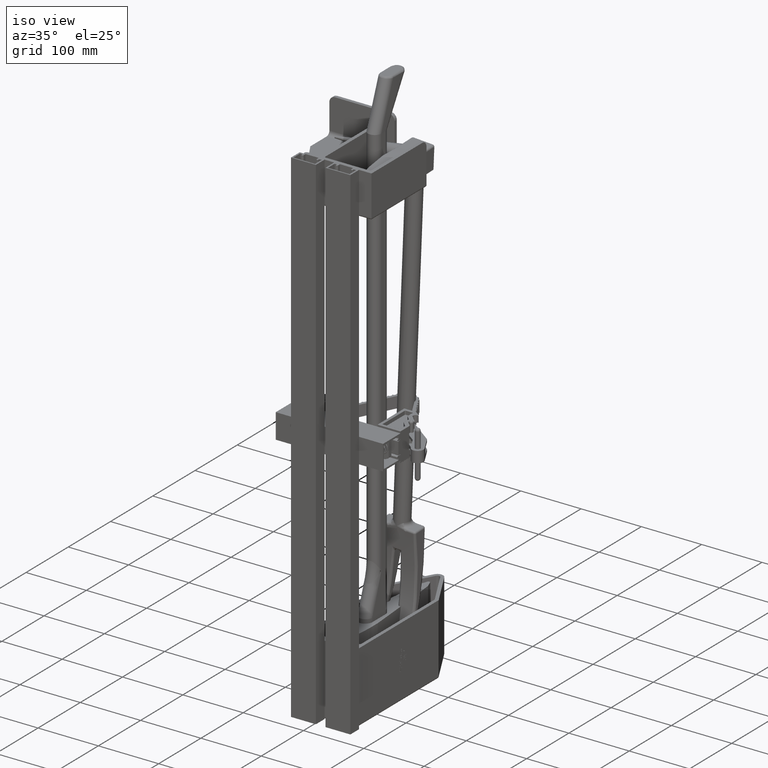
[diagram: clean part render]
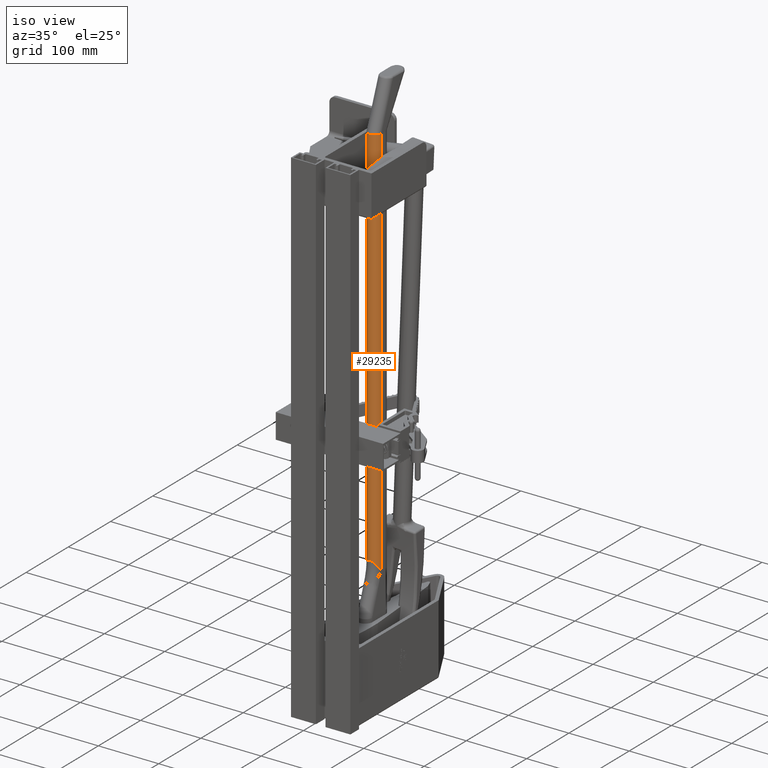
[diagram: same view with one face highlighted and labeled with its STEP entity id]
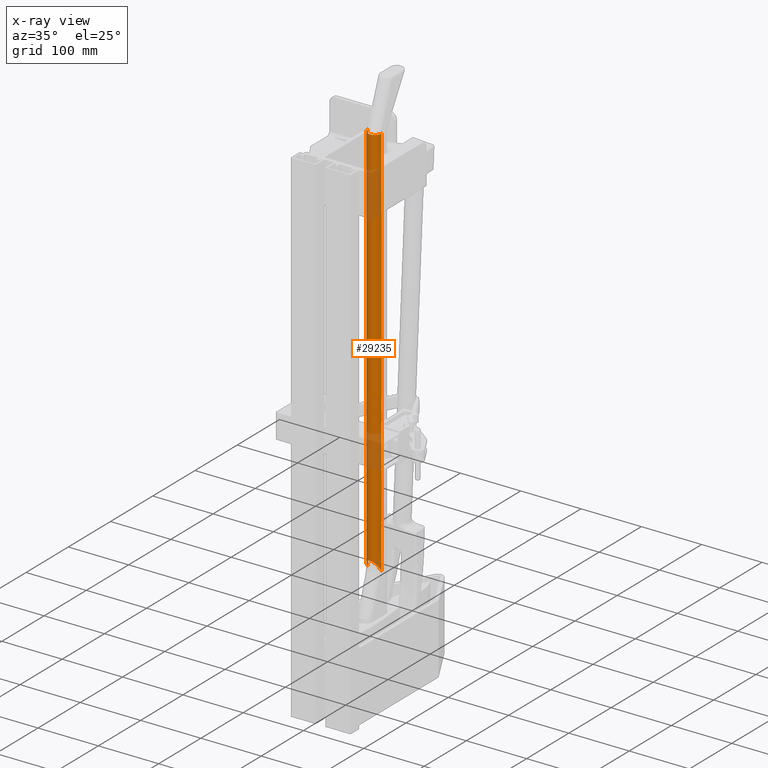
[diagram: x-ray of the same camera — body ghosted, the highlighted face saturated]
A machine part, iso view. The second image highlights one B-rep face of the part: STEP entity #29235.
The next image is the same camera in x-ray: the body ghosted, the highlighted face saturated — about 19% of this face is hidden behind the body in this view.
In plain terms, the highlighted cylindrical surface (edge-blend (fillet) strip) has radius 11.1125 mm, axis along (0, -0, -1).
Its self-contained STEP definition (entity closure, byte-faithful):
#21373 = B_SPLINE_CURVE_WITH_KNOTS ( 'NONE', 3,
 ( #52588, #52625, #52626, #52627, #52628, #52629, #52630, #52631, #52632, #52633, #52634, #52635, #52636, #52637, #52638, #52639, #52640, #52641, #52642, #52643, #52644, #52645, #52646, #52647, #52648, #52649, #52650, #52651, #52652, #52653, #52654, #52655, #52656, #52657, #52658, #52659, #52660, #52661, #52662, #52663, #52664, #52665, #52666, #52667, #52668, #52669, #52670, #52671, #52672, #52673, #52674, #52675 ),
 .UNSPECIFIED., .F., .F.,
 ( 4, 2, 2, 2, 2, 2, 2, 2, 2, 2, 2, 2, 2, 2, 2, 2, 2, 2, 2, 2, 2, 2, 2, 2, 2, 4 ),
 ( -2.097873725730390100E-005, 0.003104148637067080700, 0.006229276011391464800, 0.009354403385715850600, 0.01247953076004023500, 0.01560465813436461900, 0.01716722182152680500, 0.01872978550868898900, 0.02029234919585117700, 0.02185491288301336800, 0.02341747657017555200, 0.02419875841375664800, 0.02498004025733774000, 0.02654260394449990300, 0.02810516763166207000, 0.02966773131882423400, 0.03123029500598639400, 0.03279285869314856700, 0.03435542238031073100, 0.03591798606747289400, 0.03748054975463505800, 0.04060567712895932900, 0.04373080450328360700, 0.04685593187760787900, 0.04841849556476998700, 0.04998105925193208800 ),
 .UNSPECIFIED. ) ;
#21376 = B_SPLINE_CURVE_WITH_KNOTS ( 'NONE', 3,
 ( #52572, #52678, #52679, #52680, #52681, #52682, #52683, #52684, #52685, #52686, #52687, #52688, #52689, #52690, #52691 ),
 .UNSPECIFIED., .F., .F.,
 ( 4, 1, 1, 1, 1, 1, 1, 1, 1, 1, 1, 1, 4 ),
 ( 0.0000000000000000000, 0.06249999989689571100, 0.1249999999037693000, 0.2499999999175166200, 0.3749999999312639300, 0.4374999999381372600, 0.4999999999450111000, 0.5624999999518849300, 0.6249999999587584300, 0.7499999999725056600, 0.8749999999862526600, 0.9374999999931265000, 1.000000000000000000 ),
 .UNSPECIFIED. ) ;
#23051 = ORIENTED_EDGE ( 'NONE', *, *, #28855, .T. ) ;
#23052 = ORIENTED_EDGE ( 'NONE', *, *, #28854, .T. ) ;
#23053 = ORIENTED_EDGE ( 'NONE', *, *, #28832, .F. ) ;
#23054 = ORIENTED_EDGE ( 'NONE', *, *, #28856, .F. ) ;
#25228 = VERTEX_POINT ( 'NONE', #42778 ) ;
#25229 = VERTEX_POINT ( 'NONE', #42780 ) ;
#25236 = VERTEX_POINT ( 'NONE', #42794 ) ;
#25237 = VERTEX_POINT ( 'NONE', #42796 ) ;
#28832 = EDGE_CURVE ( 'NONE', #25228, #25229, #50689, .T. ) ;
#28854 = EDGE_CURVE ( 'NONE', #25236, #25229, #21373, .T. ) ;
#28855 = EDGE_CURVE ( 'NONE', #25237, #25236, #50708, .T. ) ;
#28856 = EDGE_CURVE ( 'NONE', #25237, #25228, #21376, .T. ) ;
#29235 = ADVANCED_FACE ( 'NONE', ( #51269 ), #51270, .T. ) ;
#33684 = EDGE_LOOP ( 'NONE', ( #23051, #23052, #23053, #23054 ) ) ;
#37541 = AXIS2_PLACEMENT_3D ( 'NONE', #63648, #63559, #63561 ) ;
#42778 = CARTESIAN_POINT ( 'NONE',  ( -2.887444690265486900, 1.241874613805310500, 31.99999999999999600 ) ) ;
#42780 = CARTESIAN_POINT ( 'NONE',  ( -2.887444690265486900, 1.241874613805310500, 6.199999999999994000 ) ) ;
#42794 = CARTESIAN_POINT ( 'NONE',  ( -2.012444690265487300, 1.241874613805310500, 6.199999999999994000 ) ) ;
#42796 = CARTESIAN_POINT ( 'NONE',  ( -2.012444690265487300, 1.241874613805310500, 31.99999999999999600 ) ) ;
#50688 = VECTOR ( 'NONE', #52449, 39.37007874015748100 ) ;
#50689 = LINE ( 'NONE', #52448, #50688 ) ;
#50708 = LINE ( 'NONE', #52676, #50719 ) ;
#50719 = VECTOR ( 'NONE', #52677, 39.37007874015748100 ) ;
#51269 = FACE_OUTER_BOUND ( 'NONE', #33684, .T. ) ;
#51270 = CYLINDRICAL_SURFACE ( 'NONE', #37541, 0.4374999999999998900 ) ;
#52448 = CARTESIAN_POINT ( 'NONE',  ( -2.887444690265486900, 1.241874613805310500, 31.99999999999999600 ) ) ;
#52449 = DIRECTION ( 'NONE',  ( -0.0000000000000000000, -0.0000000000000000000, -1.000000000000000000 ) ) ;
#52572 = CARTESIAN_POINT ( 'NONE',  ( -2.012444690265487300, 1.241874613805310500, 31.99999999999999600 ) ) ;
#52588 = CARTESIAN_POINT ( 'NONE',  ( -2.012444690265487300, 1.241874613805310500, 6.199999999999994000 ) ) ;
#52625 = CARTESIAN_POINT ( 'NONE',  ( -2.012444690265489600, 1.264623910365793900, 6.234124298257017700 ) ) ;
#52626 = CARTESIAN_POINT ( 'NONE',  ( -2.014211186721981800, 1.287372194627643700, 6.268239099271345300 ) ) ;
#52627 = CARTESIAN_POINT ( 'NONE',  ( -2.021369800931315000, 1.332744191790390600, 6.336193280402305600 ) ) ;
#52628 = CARTESIAN_POINT ( 'NONE',  ( -2.026766272818894000, 1.355361573277510400, 6.370044060745901700 ) ) ;
#52629 = CARTESIAN_POINT ( 'NONE',  ( -2.041369544810120100, 1.400069473010578700, 6.436870873962177200 ) ) ;
#52630 = CARTESIAN_POINT ( 'NONE',  ( -2.050580817321777000, 1.422201809365567500, 6.469893446826105800 ) ) ;
#52631 = CARTESIAN_POINT ( 'NONE',  ( -2.073271612120526400, 1.465764749077117100, 6.535202902990137700 ) ) ;
#52632 = CARTESIAN_POINT ( 'NONE',  ( -2.086810516563836000, 1.487282081844739200, 6.567617804967897900 ) ) ;
#52633 = CARTESIAN_POINT ( 'NONE',  ( -2.118657738108113100, 1.528824450553449200, 6.630253706017304800 ) ) ;
#52634 = CARTESIAN_POINT ( 'NONE',  ( -2.136984230393570000, 1.548953357322801400, 6.660555413808874700 ) ) ;
#52635 = CARTESIAN_POINT ( 'NONE',  ( -2.169321622515475200, 1.577829644110651900, 6.703971932130011500 ) ) ;
#52636 = CARTESIAN_POINT ( 'NONE',  ( -2.180977762626549000, 1.587269282400462200, 6.718185531853672300 ) ) ;
#52637 = CARTESIAN_POINT ( 'NONE',  ( -2.205781944755631100, 1.605227388615926700, 6.745317452973830000 ) ) ;
#52638 = CARTESIAN_POINT ( 'NONE',  ( -2.218937529503007200, 1.613767149997724200, 6.758267067008860700 ) ) ;
#52639 = CARTESIAN_POINT ( 'NONE',  ( -2.247056052514029700, 1.629823795362028300, 6.782667572886365900 ) ) ;
#52640 = CARTESIAN_POINT ( 'NONE',  ( -2.262013030167936200, 1.637343644441310800, 6.794123676870378300 ) ) ;
#52641 = CARTESIAN_POINT ( 'NONE',  ( -2.294283740730001000, 1.651122377206541800, 6.815033518615007500 ) ) ;
#52642 = CARTESIAN_POINT ( 'NONE',  ( -2.311780514180013800, 1.657425968876426300, 6.824541592977644700 ) ) ;
#52643 = CARTESIAN_POINT ( 'NONE',  ( -2.348582157070657800, 1.667900323263256300, 6.840392507563207000 ) ) ;
#52644 = CARTESIAN_POINT ( 'NONE',  ( -2.367999144701125500, 1.672100468506247700, 6.846774840542425800 ) ) ;
#52645 = CARTESIAN_POINT ( 'NONE',  ( -2.397810840514121600, 1.676373277592496400, 6.853315662565645300 ) ) ;
#52646 = CARTESIAN_POINT ( 'NONE',  ( -2.407898841036577100, 1.677470799555251100, 6.855009373202593200 ) ) ;
#52647 = CARTESIAN_POINT ( 'NONE',  ( -2.428400795686731500, 1.678964708732725700, 6.857341424264069100 ) ) ;
#52648 = CARTESIAN_POINT ( 'NONE',  ( -2.438814373285841200, 1.679356695858197400, 6.857973086477111100 ) ) ;
#52649 = CARTESIAN_POINT ( 'NONE',  ( -2.470020974561876400, 1.679408632028392700, 6.858125245594856700 ) ) ;
#52650 = CARTESIAN_POINT ( 'NONE',  ( -2.490332099112331200, 1.677967372066376600, 6.855935504144123400 ) ) ;
#52651 = CARTESIAN_POINT ( 'NONE',  ( -2.530039472743042400, 1.672447328246181100, 6.847641266153516400 ) ) ;
#52652 = CARTESIAN_POINT ( 'NONE',  ( -2.549616190279083000, 1.668294098142430100, 6.841408598447074500 ) ) ;
#52653 = CARTESIAN_POINT ( 'NONE',  ( -2.586245471006595900, 1.658035738499411500, 6.826028418065971200 ) ) ;
#52654 = CARTESIAN_POINT ( 'NONE',  ( -2.603513023951054000, 1.651922370217618200, 6.816879155186832400 ) ) ;
#52655 = CARTESIAN_POINT ( 'NONE',  ( -2.636281194153773800, 1.638108260746630400, 6.796069429994536100 ) ) ;
#52656 = CARTESIAN_POINT ( 'NONE',  ( -2.651691732529837700, 1.630433729062352700, 6.784438086522952100 ) ) ;
#52657 = CARTESIAN_POINT ( 'NONE',  ( -2.680465422738493900, 1.614084563983776400, 6.759694603798858600 ) ) ;
#52658 = CARTESIAN_POINT ( 'NONE',  ( -2.693878658911292400, 1.605382688500640600, 6.746541436970390200 ) ) ;
#52659 = CARTESIAN_POINT ( 'NONE',  ( -2.718756833871265300, 1.587391520595796000, 6.719433266256449300 ) ) ;
#52660 = CARTESIAN_POINT ( 'NONE',  ( -2.730291066947884800, 1.578059928098169300, 6.705413977956777000 ) ) ;
#52661 = CARTESIAN_POINT ( 'NONE',  ( -2.751843479205615200, 1.558847448132828900, 6.676586876770720400 ) ) ;
#52662 = CARTESIAN_POINT ( 'NONE',  ( -2.761857434878786300, 1.548967153242808600, 6.661775455865091000 ) ) ;
#52663 = CARTESIAN_POINT ( 'NONE',  ( -2.780529366237162000, 1.528770344068197200, 6.631410729723521400 ) ) ;
#52664 = CARTESIAN_POINT ( 'NONE',  ( -2.789214575824742000, 1.518417696656642500, 6.615815144717246600 ) ) ;
#52665 = CARTESIAN_POINT ( 'NONE',  ( -2.813273462012291700, 1.487015351550359900, 6.568497273036746800 ) ) ;
#52666 = CARTESIAN_POINT ( 'NONE',  ( -2.826698629729387200, 1.465630920060932100, 6.536273485827804200 ) ) ;
#52667 = CARTESIAN_POINT ( 'NONE',  ( -2.849390897960114400, 1.422022171793498400, 6.470829720517459200 ) ) ;
#52668 = CARTESIAN_POINT ( 'NONE',  ( -2.858654619689961200, 1.399734084908014700, 6.437522494227482500 ) ) ;
#52669 = CARTESIAN_POINT ( 'NONE',  ( -2.873266615603123200, 1.354843488082344800, 6.370250661350699100 ) ) ;
#52670 = CARTESIAN_POINT ( 'NONE',  ( -2.878601109312140900, 1.332329730384298500, 6.336433786649081400 ) ) ;
#52671 = CARTESIAN_POINT ( 'NONE',  ( -2.883919441435904000, 1.298467159894694000, 6.285461345123134300 ) ) ;
#52672 = CARTESIAN_POINT ( 'NONE',  ( -2.885242053652290900, 1.287165133529466700, 6.268428461983490700 ) ) ;
#52673 = CARTESIAN_POINT ( 'NONE',  ( -2.887004646994023800, 1.264537799213268000, 6.234276786738939300 ) ) ;
#52674 = CARTESIAN_POINT ( 'NONE',  ( -2.887444690265483800, 1.253179934014524000, 6.217108164634057100 ) ) ;
#52675 = CARTESIAN_POINT ( 'NONE',  ( -2.887444690265486900, 1.241874613805310500, 6.199999999999994000 ) ) ;
#52676 = CARTESIAN_POINT ( 'NONE',  ( -2.012444690265487300, 1.241874613805310500, 31.99999999999999600 ) ) ;
#52677 = DIRECTION ( 'NONE',  ( -0.0000000000000000000, -0.0000000000000000000, -1.000000000000000000 ) ) ;
#52678 = CARTESIAN_POINT ( 'NONE',  ( -2.012444690265487300, 1.266757304942749600, 31.99999999999999600 ) ) ;
#52679 = CARTESIAN_POINT ( 'NONE',  ( -2.016724355797400400, 1.317645586769451900, 31.99999999999997500 ) ) ;
#52680 = CARTESIAN_POINT ( 'NONE',  ( -2.044124220531426100, 1.420296450240400700, 31.99999999999993200 ) ) ;
#52681 = CARTESIAN_POINT ( 'NONE',  ( -2.116928561222857700, 1.543466907256196400, 32.00000000000006400 ) ) ;
#52682 = CARTESIAN_POINT ( 'NONE',  ( -2.239685181387358600, 1.634175495888006400, 31.99999999999997500 ) ) ;
#52683 = CARTESIAN_POINT ( 'NONE',  ( -2.357076209887464500, 1.672713065115817700, 31.99999999999998600 ) ) ;
#52684 = CARTESIAN_POINT ( 'NONE',  ( -2.449944690265487800, 1.682724463991825300, 31.99999999999999600 ) ) ;
#52685 = CARTESIAN_POINT ( 'NONE',  ( -2.542813170643507500, 1.672713065115816600, 31.99999999999996400 ) ) ;
#52686 = CARTESIAN_POINT ( 'NONE',  ( -2.660204199143616100, 1.634175495888009900, 32.00000000000007100 ) ) ;
#52687 = CARTESIAN_POINT ( 'NONE',  ( -2.782960819308113000, 1.543466907256192800, 31.99999999999994700 ) ) ;
#52688 = CARTESIAN_POINT ( 'NONE',  ( -2.855765159999549500, 1.420296450240402700, 32.00000000000002100 ) ) ;
#52689 = CARTESIAN_POINT ( 'NONE',  ( -2.883165024733574700, 1.317645586769452800, 32.00000000000000700 ) ) ;
#52690 = CARTESIAN_POINT ( 'NONE',  ( -2.887444690265486900, 1.266757304942749600, 31.99999999999999600 ) ) ;
#52691 = CARTESIAN_POINT ( 'NONE',  ( -2.887444690265486900, 1.241874613805310500, 31.99999999999999600 ) ) ;
#63559 = DIRECTION ( 'NONE',  ( -0.0000000000000000000, -0.0000000000000000000, -1.000000000000000000 ) ) ;
#63561 = DIRECTION ( 'NONE',  ( -1.000000000000000000, 0.0000000000000000000, 0.0000000000000000000 ) ) ;
#63648 = CARTESIAN_POINT ( 'NONE',  ( -2.449944690265486900, 1.241874613805310500, 31.99999999999999600 ) ) ;